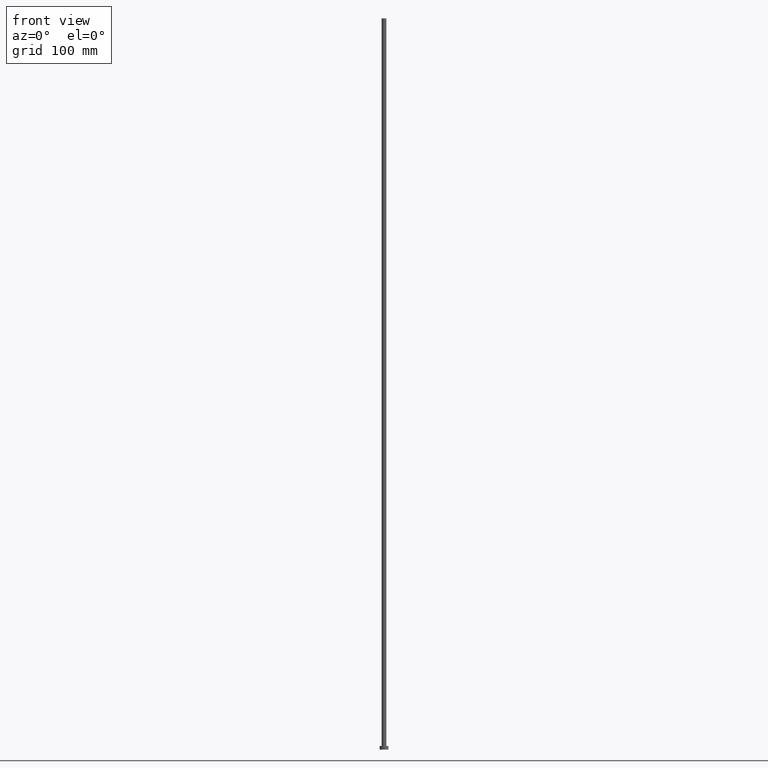
[diagram: clean part render]
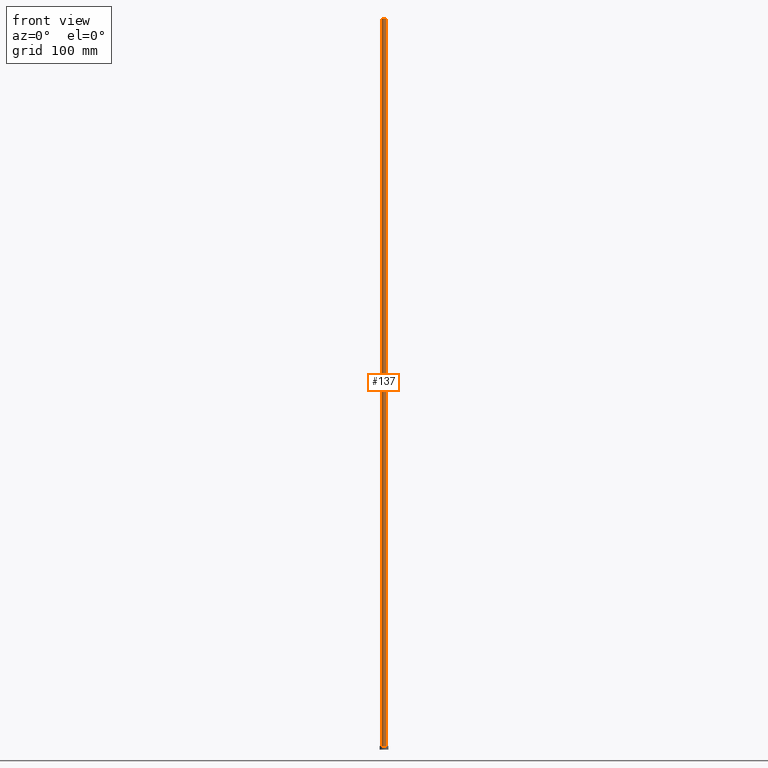
[diagram: same view with one face highlighted and labeled with its STEP entity id]
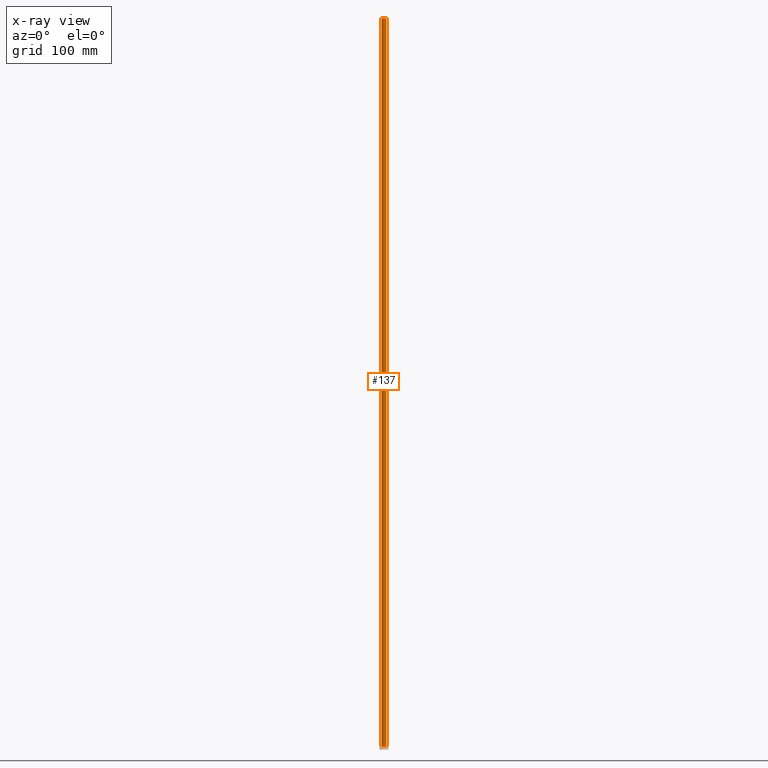
[diagram: x-ray of the same camera — body ghosted, the highlighted face saturated]
A machine part, front view. The second image highlights one B-rep face of the part: STEP entity #137.
The next image is the same camera in x-ray: the body ghosted, the highlighted face saturated — about 0% of this face is hidden behind the body in this view.
In plain terms, the highlighted cylindrical surface (edge-blend (fillet) strip) has radius 3.25 mm, axis along (-0, -0, -1).
Its self-contained STEP definition (entity closure, byte-faithful):
#3 = DIRECTION ( 'NONE',  ( -0.000000000000000000, -0.000000000000000000, -1.000000000000000000 ) ) ;
#10 = DIRECTION ( 'NONE',  ( 0.000000000000000000, 0.000000000000000000, 1.000000000000000000 ) ) ;
#16 = LINE ( 'NONE', #80, #226 ) ;
#21 = CARTESIAN_POINT ( 'NONE',  ( -3.250000000000000444, 0.000000000000000000, 1000.000000000000000 ) ) ;
#23 = AXIS2_PLACEMENT_3D ( 'NONE', #255, #181, #62 ) ;
#29 = CIRCLE ( 'NONE', #123, 3.250000000000000444 ) ;
#30 = VERTEX_POINT ( 'NONE', #31 ) ;
#31 = CARTESIAN_POINT ( 'NONE',  ( -3.250000000000000444, 0.000000000000000000, 5.000000000000000000 ) ) ;
#34 = EDGE_LOOP ( 'NONE', ( #172, #231, #197, #47 ) ) ;
#36 = LINE ( 'NONE', #121, #173 ) ;
#37 = CARTESIAN_POINT ( 'NONE',  ( 3.250000000000000444, 3.980102097228897245E-16, 5.000000000000000000 ) ) ;
#47 = ORIENTED_EDGE ( 'NONE', *, *, #188, .T. ) ;
#55 = AXIS2_PLACEMENT_3D ( 'NONE', #204, #119, #221 ) ;
#59 = CARTESIAN_POINT ( 'NONE',  ( 3.250000000000000444, 3.980102097228897245E-16, 1000.000000000000000 ) ) ;
#62 = DIRECTION ( 'NONE',  ( -1.000000000000000000, 0.000000000000000000, 0.000000000000000000 ) ) ;
#66 = EDGE_CURVE ( 'NONE', #205, #248, #29, .T. ) ;
#71 = CARTESIAN_POINT ( 'NONE',  ( 0.000000000000000000, 0.000000000000000000, 1000.000000000000000 ) ) ;
#80 = CARTESIAN_POINT ( 'NONE',  ( 3.250000000000000444, 3.980102097228897245E-16, 1000.000000000000000 ) ) ;
#119 = DIRECTION ( 'NONE',  ( 0.000000000000000000, 0.000000000000000000, 1.000000000000000000 ) ) ;
#121 = CARTESIAN_POINT ( 'NONE',  ( -3.250000000000000444, 0.000000000000000000, 1000.000000000000000 ) ) ;
#123 = AXIS2_PLACEMENT_3D ( 'NONE', #71, #10, #149 ) ;
#137 = ADVANCED_FACE ( 'NONE', ( #156 ), #217, .T. ) ;
#141 = DIRECTION ( 'NONE',  ( -0.000000000000000000, -0.000000000000000000, -1.000000000000000000 ) ) ;
#146 = EDGE_CURVE ( 'NONE', #248, #147, #16, .T. ) ;
#147 = VERTEX_POINT ( 'NONE', #37 ) ;
#149 = DIRECTION ( 'NONE',  ( 1.000000000000000000, 0.000000000000000000, 0.000000000000000000 ) ) ;
#155 = EDGE_CURVE ( 'NONE', #205, #30, #36, .T. ) ;
#156 = FACE_OUTER_BOUND ( 'NONE', #34, .T. ) ;
#167 = CIRCLE ( 'NONE', #55, 3.250000000000000444 ) ;
#172 = ORIENTED_EDGE ( 'NONE', *, *, #146, .F. ) ;
#173 = VECTOR ( 'NONE', #3, 1000.000000000000000 ) ;
#181 = DIRECTION ( 'NONE',  ( -0.000000000000000000, -0.000000000000000000, -1.000000000000000000 ) ) ;
#188 = EDGE_CURVE ( 'NONE', #30, #147, #167, .T. ) ;
#197 = ORIENTED_EDGE ( 'NONE', *, *, #155, .T. ) ;
#204 = CARTESIAN_POINT ( 'NONE',  ( 0.000000000000000000, 0.000000000000000000, 5.000000000000000000 ) ) ;
#205 = VERTEX_POINT ( 'NONE', #21 ) ;
#217 = CYLINDRICAL_SURFACE ( 'NONE', #23, 3.250000000000000444 ) ;
#221 = DIRECTION ( 'NONE',  ( 1.000000000000000000, 0.000000000000000000, 0.000000000000000000 ) ) ;
#226 = VECTOR ( 'NONE', #141, 1000.000000000000000 ) ;
#231 = ORIENTED_EDGE ( 'NONE', *, *, #66, .F. ) ;
#248 = VERTEX_POINT ( 'NONE', #59 ) ;
#255 = CARTESIAN_POINT ( 'NONE',  ( 0.000000000000000000, 0.000000000000000000, 1000.000000000000000 ) ) ;